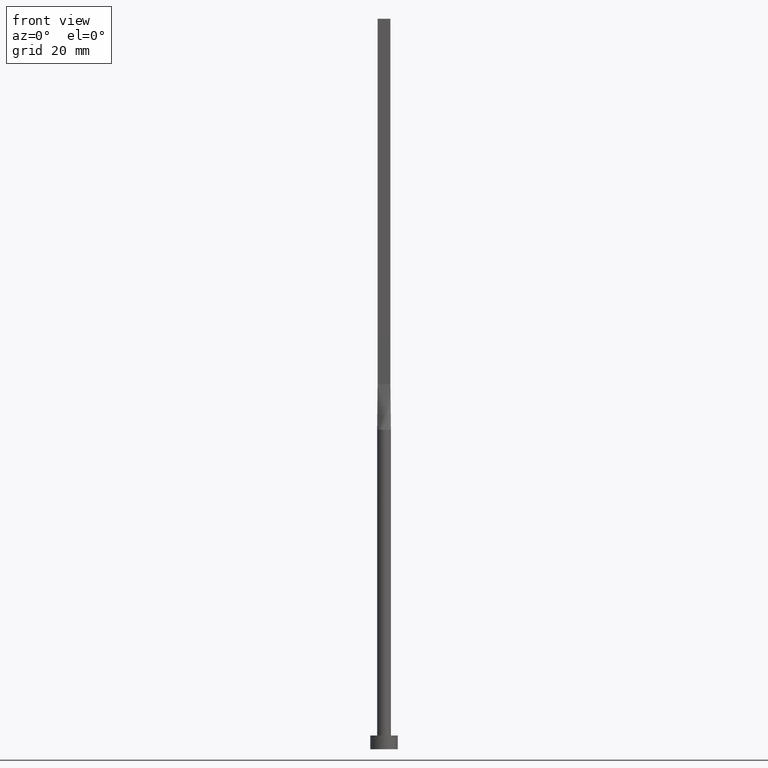
[diagram: clean part render]
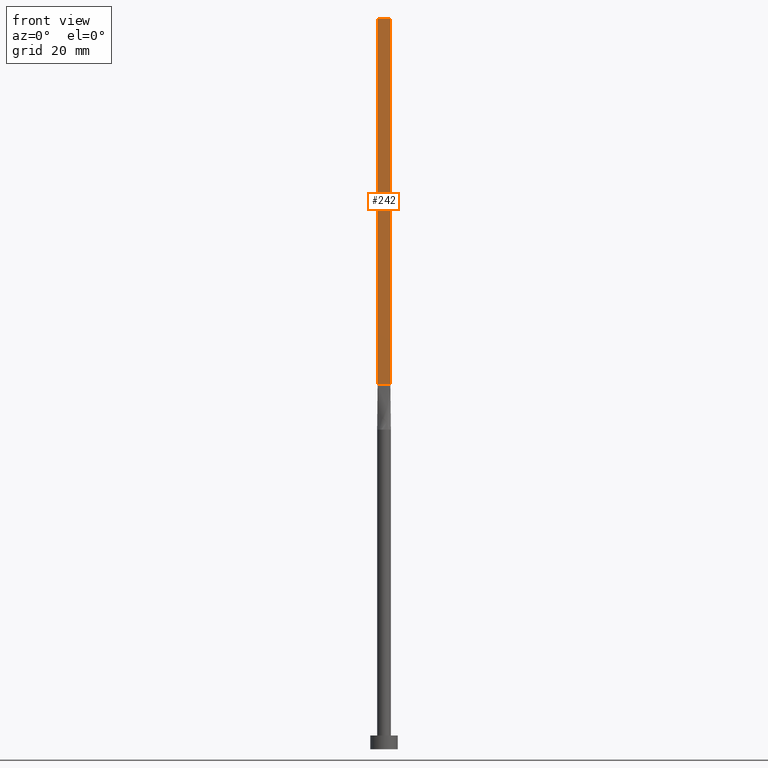
[diagram: same view with one face highlighted and labeled with its STEP entity id]
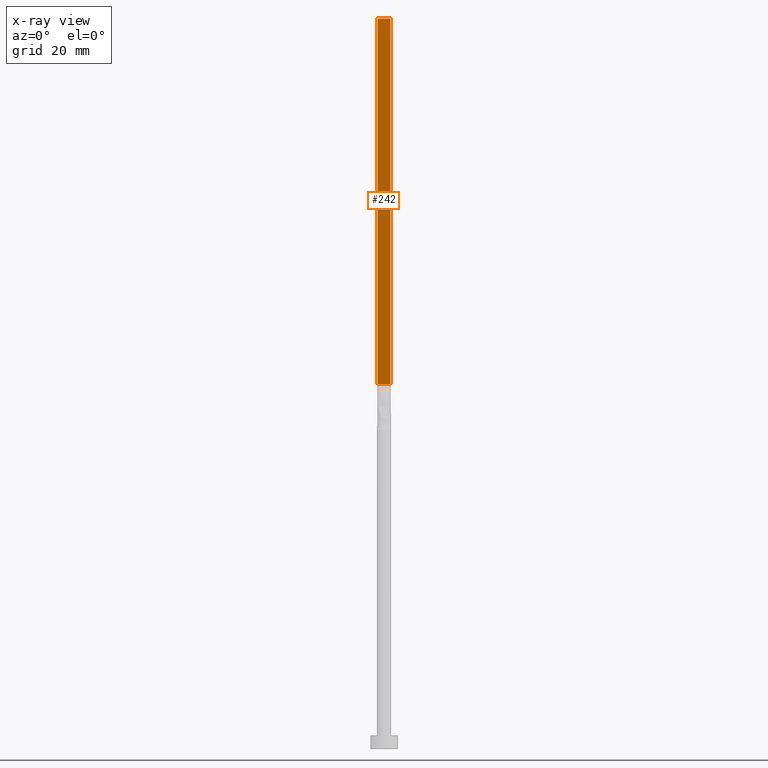
[diagram: x-ray of the same camera — body ghosted, the highlighted face saturated]
A machine part, front view. The second image highlights one B-rep face of the part: STEP entity #242.
The next image is the same camera in x-ray: the body ghosted, the highlighted face saturated — about 0% of this face is hidden behind the body in this view.
In plain terms, the highlighted planar face has unit normal (0, 1, -0).
Its self-contained STEP definition (entity closure, byte-faithful):
#12 = EDGE_LOOP ( 'NONE', ( #406, #323, #430, #480 ) ) ;
#37 = DIRECTION ( 'NONE',  ( 1.000000000000000000, -5.808225924029488744E-17, 0.000000000000000000 ) ) ;
#46 = PLANE ( 'NONE',  #349 ) ;
#50 = VECTOR ( 'NONE', #402, 1000.000000000000000 ) ;
#63 = LINE ( 'NONE', #524, #221 ) ;
#89 = VERTEX_POINT ( 'NONE', #453 ) ;
#103 = CARTESIAN_POINT ( 'NONE',  ( -1.399999999999999911, -0.3999999999999996336, 80.00000000000000000 ) ) ;
#122 = CARTESIAN_POINT ( 'NONE',  ( -1.399999999999999911, -0.3999999999999996336, 160.0000000000000000 ) ) ;
#129 = FACE_OUTER_BOUND ( 'NONE', #12, .T. ) ;
#150 = CARTESIAN_POINT ( 'NONE',  ( -1.399999999999999911, -0.3999999999999996336, 160.0000000000000000 ) ) ;
#195 = VECTOR ( 'NONE', #438, 1000.000000000000000 ) ;
#211 = EDGE_CURVE ( 'NONE', #412, #304, #63, .T. ) ;
#217 = EDGE_CURVE ( 'NONE', #412, #467, #561, .T. ) ;
#220 = DIRECTION ( 'NONE',  ( 5.808225924029488744E-17, 1.000000000000000000, -0.000000000000000000 ) ) ;
#221 = VECTOR ( 'NONE', #37, 1000.000000000000000 ) ;
#242 = ADVANCED_FACE ( 'NONE', ( #129 ), #46, .F. ) ;
#280 = CARTESIAN_POINT ( 'NONE',  ( -1.399999999999999911, -0.3999999999999996336, 80.00000000000000000 ) ) ;
#285 = VECTOR ( 'NONE', #463, 1000.000000000000000 ) ;
#295 = EDGE_CURVE ( 'NONE', #467, #89, #381, .T. ) ;
#304 = VERTEX_POINT ( 'NONE', #550 ) ;
#323 = ORIENTED_EDGE ( 'NONE', *, *, #512, .F. ) ;
#349 = AXIS2_PLACEMENT_3D ( 'NONE', #122, #220, #539 ) ;
#381 = LINE ( 'NONE', #280, #285 ) ;
#402 = DIRECTION ( 'NONE',  ( -0.000000000000000000, -0.000000000000000000, -1.000000000000000000 ) ) ;
#406 = ORIENTED_EDGE ( 'NONE', *, *, #295, .T. ) ;
#412 = VERTEX_POINT ( 'NONE', #511 ) ;
#430 = ORIENTED_EDGE ( 'NONE', *, *, #211, .F. ) ;
#438 = DIRECTION ( 'NONE',  ( -0.000000000000000000, -0.000000000000000000, -1.000000000000000000 ) ) ;
#453 = CARTESIAN_POINT ( 'NONE',  ( 1.399999999999999911, -0.3999999999999998002, 80.00000000000000000 ) ) ;
#463 = DIRECTION ( 'NONE',  ( 1.000000000000000000, -5.808225924029488744E-17, 0.000000000000000000 ) ) ;
#467 = VERTEX_POINT ( 'NONE', #103 ) ;
#480 = ORIENTED_EDGE ( 'NONE', *, *, #217, .T. ) ;
#511 = CARTESIAN_POINT ( 'NONE',  ( -1.399999999999999911, -0.3999999999999996336, 160.0000000000000000 ) ) ;
#512 = EDGE_CURVE ( 'NONE', #304, #89, #560, .T. ) ;
#514 = CARTESIAN_POINT ( 'NONE',  ( 1.399999999999999911, -0.3999999999999998002, 160.0000000000000000 ) ) ;
#524 = CARTESIAN_POINT ( 'NONE',  ( -1.399999999999999911, -0.3999999999999996336, 160.0000000000000000 ) ) ;
#539 = DIRECTION ( 'NONE',  ( -1.000000000000000000, 5.808225924029488744E-17, 0.000000000000000000 ) ) ;
#550 = CARTESIAN_POINT ( 'NONE',  ( 1.399999999999999911, -0.3999999999999998002, 160.0000000000000000 ) ) ;
#560 = LINE ( 'NONE', #514, #195 ) ;
#561 = LINE ( 'NONE', #150, #50 ) ;